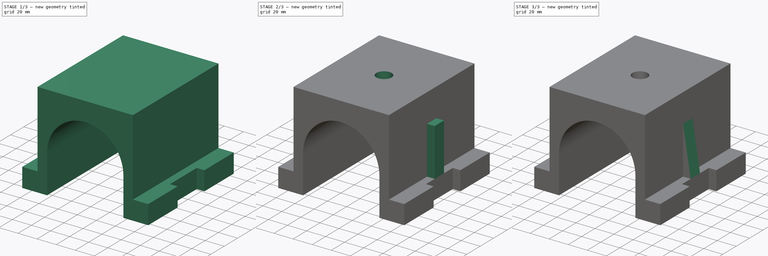
[diagram: build sequence overview — one tinted view per stage of 3, left to right]
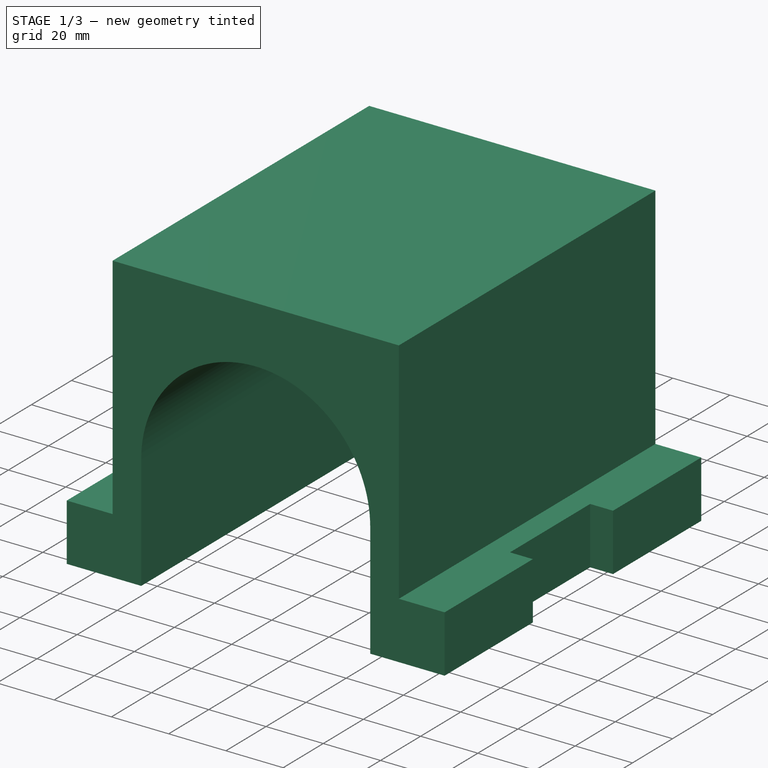
[diagram: stage 1 of 3 — iso view after this stage's code; geometry added in this stage tinted green]
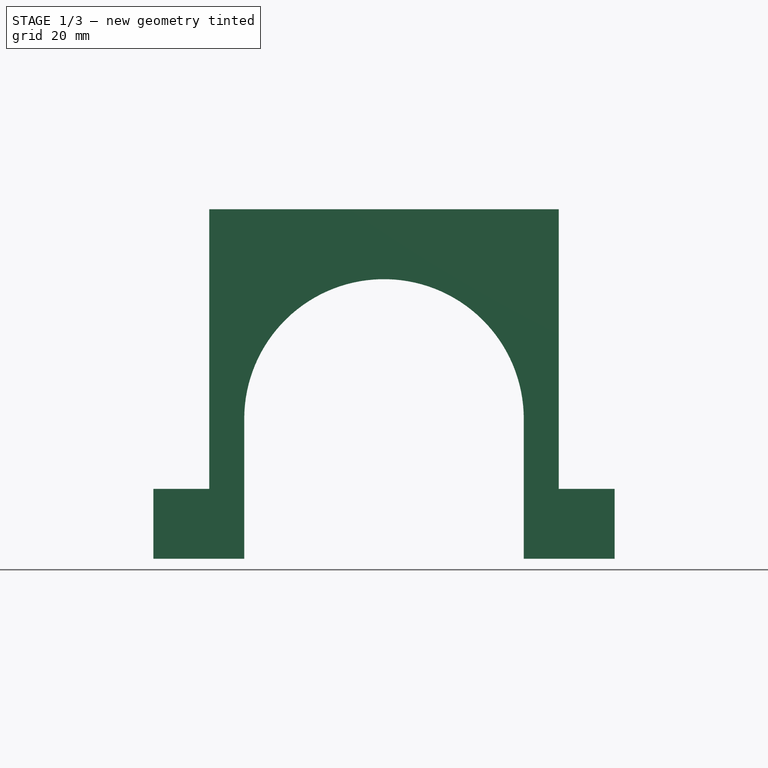
[diagram: stage 1 of 3 — front view after this stage's code; geometry added in this stage tinted green]
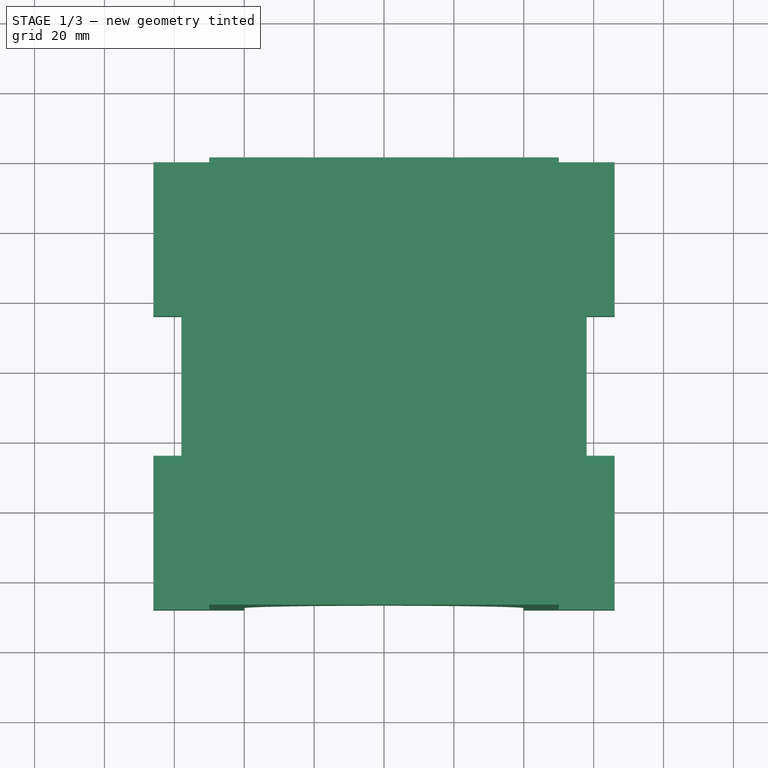
[diagram: stage 1 of 3 — top view after this stage's code; geometry added in this stage tinted green]
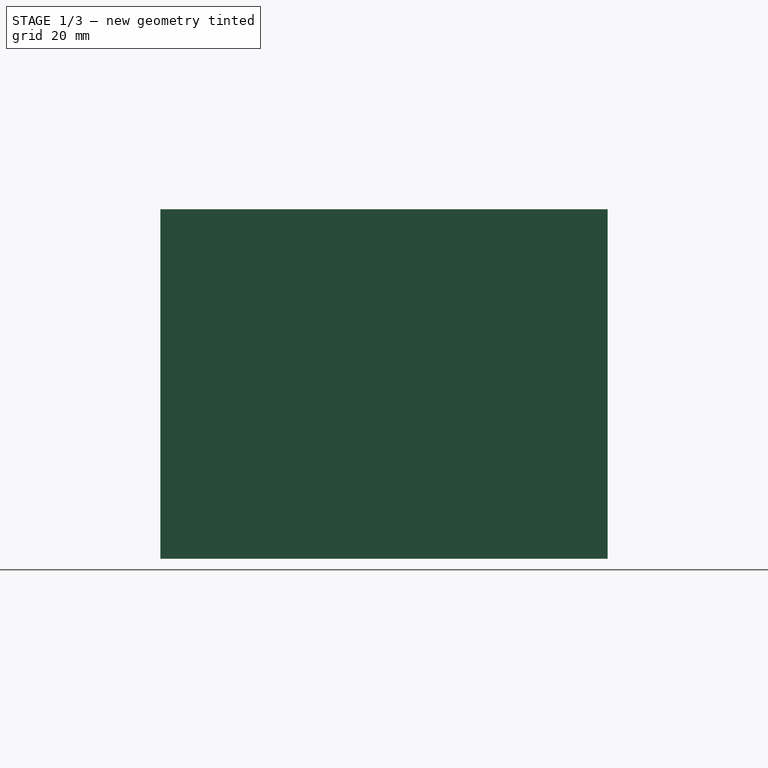
[diagram: stage 1 of 3 — right view after this stage's code; geometry added in this stage tinted green]
FCSTD DOCUMENT  (FreeCAD 1.0R39109 (Git))
Label: Задание1-2
License: All rights reserved
LicenseURL: https://en.wikipedia.org/wiki/All_rights_reserved
objects: Sketcher::SketchObject×5, PartDesign::Pocket×3, PartDesign::Pad×2, PartDesign::Mirrored×1, PartDesign::Body×1
note: 28 computed .brp shape members not serialized (recipe doc carries the construction recipe); baked Part::Feature solids carry a one-line shape summary decoded from their .brp

FEATURE [Sketcher::SketchObject] Sketch
  ArcFitTolerance = 1e-06
  AttachmentSupport = -> [XZ_Plane]
  FullyConstrained = true
  MakeInternals = false
  MapMode = 5
  Placement = pos=(0,0,0) rot=(1,0,0;1.5708rad)
  sketch-geometry (12):
    g0: LineSegment StartX=-50 StartY=100 StartZ=0 EndX=-50 EndY=20 EndZ=0
    g1: LineSegment StartX=50 StartY=20 StartZ=0 EndX=50 EndY=100 EndZ=0
    g2: LineSegment StartX=50 StartY=100 StartZ=0 EndX=-50 EndY=100 EndZ=0
    g3: LineSegment StartX=-50 StartY=20 StartZ=0 EndX=-66 EndY=20 EndZ=0
    g4: LineSegment StartX=-66 StartY=20 StartZ=0 EndX=-66 EndY=0 EndZ=0
    g5: LineSegment StartX=66 StartY=20 StartZ=0 EndX=66 EndY=0 EndZ=0
    g6: LineSegment StartX=-66 StartY=0 StartZ=0 EndX=-40 EndY=0 EndZ=0
    g7: LineSegment StartX=66 StartY=0 StartZ=0 EndX=40 EndY=0 EndZ=0
    g8: LineSegment StartX=40 StartY=0 StartZ=0 EndX=40 EndY=40 EndZ=0
    g9: LineSegment StartX=-40 StartY=0 StartZ=0 EndX=-40 EndY=40 EndZ=0
    g10: ArcOfCircle CenterX=0 CenterY=40 CenterZ=0 NormalX=0 NormalY=0 NormalZ=1 AngleXU=0 Radius=40 StartAngle=6.0017e-12 EndAngle=3.14159
    g11: LineSegment StartX=50 StartY=20 StartZ=0 EndX=66 EndY=20 EndZ=0
  constraints (37):
    c: Coincident(g1,g2)
    c: Coincident(g2,g0)
    c: Vertical(g0)
    c: Vertical(g1)
    c: Horizontal(g2)
    c: DistanceX(g2,g2) = 100
    c: DistanceY(g1,g1) = 80
    c: Distance(g1,g-1) = 100
    c: Distance(g3) = 16
    c: Coincident(g3,g0)
    c: Horizontal(g3)
    c: Distance(g4) = 20
    c: Vertical(g4)
    c: Coincident(g4,g3)
    c: Distance(g5) = 20
    c: Vertical(g5)
    c: Distance(g6) = 26
    c: Horizontal(g6)
    c: Coincident(g6,g4)
    c: PointOnObject(g6,g-1)
    c: Distance(g7) = 26
    c: Horizontal(g7)
    c: Coincident(g7,g5)
    c: PointOnObject(g7,g-1)
    c: Distance(g8) = 40
    c: Vertical(g8)
    c: Coincident(g8,g7)
    c: Distance(g9) = 40
    c: Vertical(g9)
    c: Coincident(g9,g6)
    c: PointOnObject(g10,g-2)
    c: Coincident(g10,g9)
    c: Coincident(g10,g8)
    c: Coincident(g11,g1)
    c: Coincident(g11,g5)
    c: Distance(g0,g-2) = 50
    c: Block(g10)
FEATURE [PartDesign::Pad] Pad
  Direction = (0,-1,2e-16)
  Length = 128
  Length2 = 10
  Placement = pos=(0,0,0) rot=(1,0,0;1.5708rad)
  Profile = -> Sketch
  ReferenceAxis = -> Sketch [N_Axis]
  Refine = true
  Suppressed = false
  Type = 0
FEATURE [Sketcher::SketchObject] Sketch001
  ArcFitTolerance = 1e-06
  AttachmentSupport = -> [Pad]
  FullyConstrained = true
  MakeInternals = false
  MapMode = 5
  Placement = pos=(0,4.4e-15,20) rot=(0,0,1;3.14159rad)
  sketch-geometry (8):
    g0: LineSegment StartX=-66 StartY=84 StartZ=0 EndX=-66 EndY=44 EndZ=0
    g1: LineSegment StartX=-66 StartY=44 StartZ=0 EndX=-58 EndY=44 EndZ=0
    g2: LineSegment StartX=-58 StartY=44 StartZ=0 EndX=-58 EndY=84 EndZ=0
    g3: LineSegment StartX=-58 StartY=84 StartZ=0 EndX=-66 EndY=84 EndZ=0
    g4: LineSegment StartX=58 StartY=84 StartZ=0 EndX=58 EndY=44 EndZ=0
    g5: LineSegment StartX=58 StartY=44 StartZ=0 EndX=66 EndY=44 EndZ=0
    g6: LineSegment StartX=66 StartY=44 StartZ=0 EndX=66 EndY=84 EndZ=0
    g7: LineSegment StartX=66 StartY=84 StartZ=0 EndX=58 EndY=84 EndZ=0
  constraints (24):
    c: Coincident(g0,g1)
    c: Coincident(g1,g2)
    c: Coincident(g2,g3)
    c: Coincident(g3,g0)
    c: Vertical(g0)
    c: Vertical(g2)
    c: Horizontal(g1)
    c: Horizontal(g3)
    c: Distance(g0,g2) = 8
    c: Distance(g1,g3) = 40
    c: Distance(g2,g-1) = 84
    c: Distance(g2,g-2) = 58
    c: Coincident(g4,g5)
    c: Coincident(g5,g6)
    c: Coincident(g6,g7)
    c: Coincident(g7,g4)
    c: Vertical(g4)
    c: Vertical(g6)
    c: Horizontal(g5)
    c: Horizontal(g7)
    c: Distance(g4,g6) = 8
    c: Distance(g5,g7) = 40
    c: Distance(g4,g-1) = 84
    c: Distance(g4,g-2) = 58
FEATURE [PartDesign::Pocket] Pocket
  BaseFeature = -> Pad
  Direction = (0,0,-1)
  Length = 5
  Length2 = 5
  Placement = pos=(0,0,0) rot=(1,0,0;1.5708rad)
  Profile = -> Sketch001
  ReferenceAxis = -> Sketch001 [N_Axis]
  Refine = true
  Suppressed = false
  Type = 1
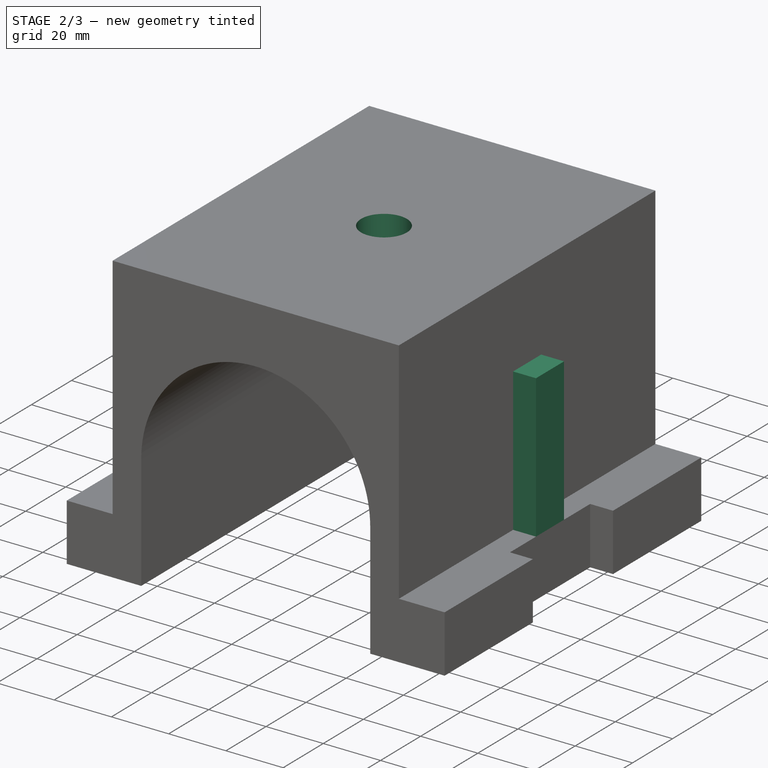
[diagram: stage 2 of 3 — iso view after this stage's code; geometry added in this stage tinted green]
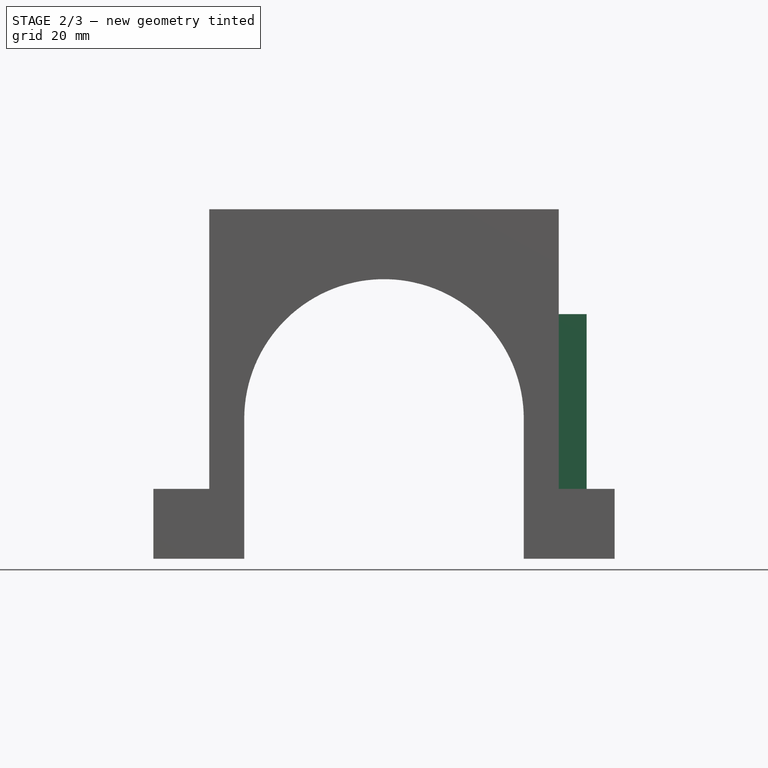
[diagram: stage 2 of 3 — front view after this stage's code; geometry added in this stage tinted green]
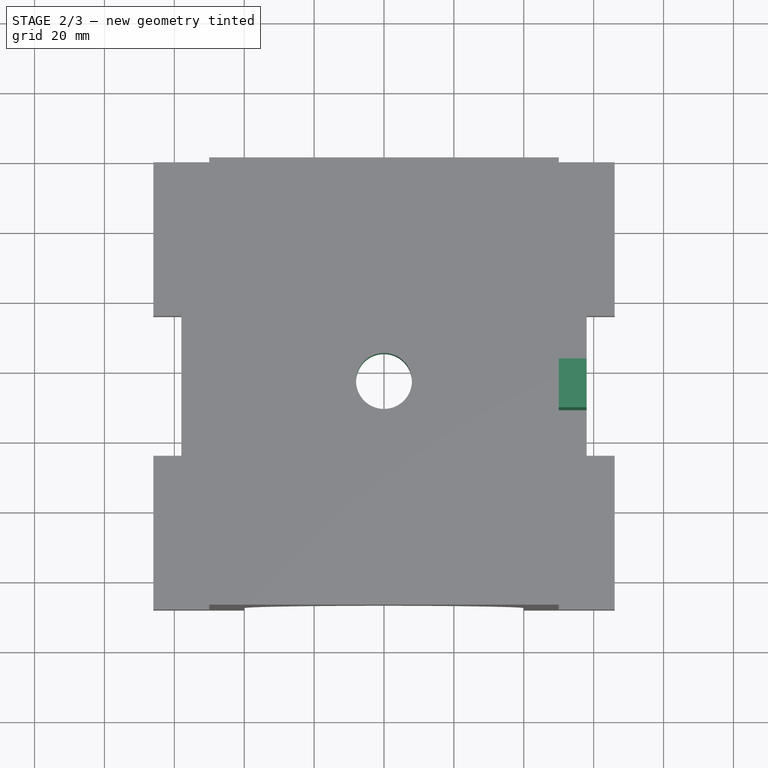
[diagram: stage 2 of 3 — top view after this stage's code; geometry added in this stage tinted green]
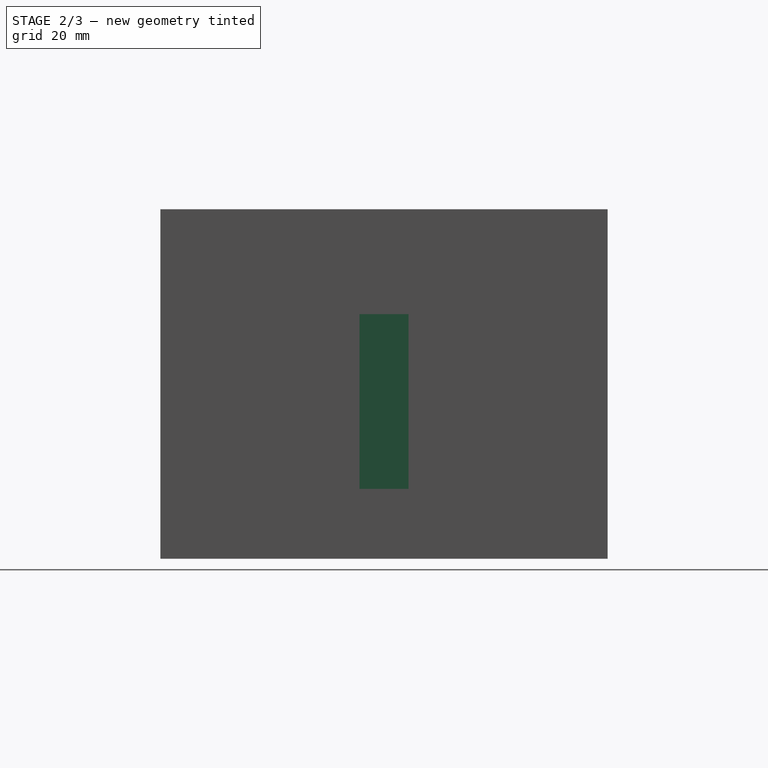
[diagram: stage 2 of 3 — right view after this stage's code; geometry added in this stage tinted green]
FEATURE [Sketcher::SketchObject] Sketch002
  ArcFitTolerance = 1e-06
  AttachmentSupport = -> [Pocket]
  FullyConstrained = true
  MakeInternals = false
  MapMode = 5
  Placement = pos=(50,0,0) rot=(0.707107,0,0.707107;3.14159rad)
  sketch-geometry (4):
    g0: LineSegment StartX=20 StartY=71 StartZ=0 EndX=20 EndY=57 EndZ=0
    g1: LineSegment StartX=20 StartY=57 StartZ=0 EndX=70 EndY=57 EndZ=0
    g2: LineSegment StartX=70 StartY=57 StartZ=0 EndX=70 EndY=71 EndZ=0
    g3: LineSegment StartX=70 StartY=71 StartZ=0 EndX=20 EndY=71 EndZ=0
  constraints (12):
    c: Coincident(g0,g1)
    c: Coincident(g1,g2)
    c: Coincident(g2,g3)
    c: Coincident(g3,g0)
    c: Vertical(g0)
    c: Vertical(g2)
    c: Horizontal(g1)
    c: Horizontal(g3)
    c: Distance(g0,g2) = 50
    c: Distance(g1,g3) = 14
    c: Distance(g1,g-1) = 57
    c: Distance(g1,g-2) = 70
FEATURE [PartDesign::Pad] Pad001
  BaseFeature = -> Pocket
  Direction = (1,0,-2e-16)
  Length = 8
  Length2 = 10
  Placement = pos=(0,0,0) rot=(1,0,0;1.5708rad)
  Profile = -> Sketch002
  ReferenceAxis = -> Sketch002 [N_Axis]
  Refine = true
  Suppressed = false
  Type = 0
FEATURE [Sketcher::SketchObject] Sketch003
  ArcFitTolerance = 1e-06
  AttachmentSupport = -> [Pad001]
  FullyConstrained = true
  MakeInternals = false
  MapMode = 5
  Placement = pos=(0,2.22e-14,100) rot=(0,0,1;3.14159rad)
  sketch-geometry (1):
    g0: Circle CenterX=0 CenterY=64 CenterZ=0 NormalX=0 NormalY=0 NormalZ=1 AngleXU=0 Radius=8
  constraints (3):
    c: Diameter(g0) = 16
    c: PointOnObject(g0,g-2)
    c: Distance(g0,g-1) = 64
FEATURE [PartDesign::Pocket] Pocket001
  BaseFeature = -> Pad001
  Direction = (0,0,-1)
  Length = 5
  Length2 = 5
  Placement = pos=(0,0,0) rot=(1,0,0;1.5708rad)
  Profile = -> Sketch003
  ReferenceAxis = -> Sketch003 [N_Axis]
  Refine = true
  Suppressed = false
  Type = 1
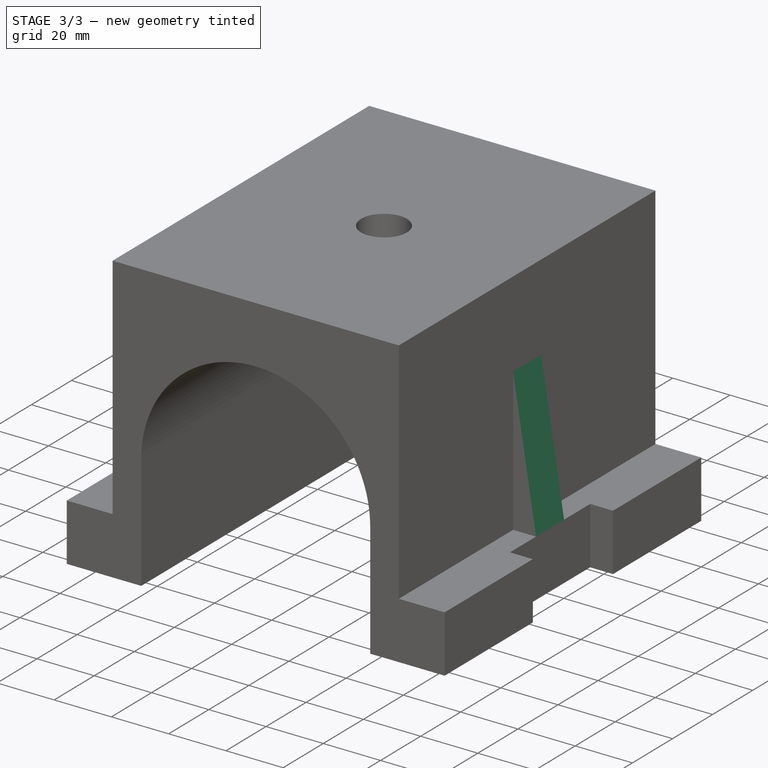
[diagram: stage 3 of 3 — iso view after this stage's code; geometry added in this stage tinted green]
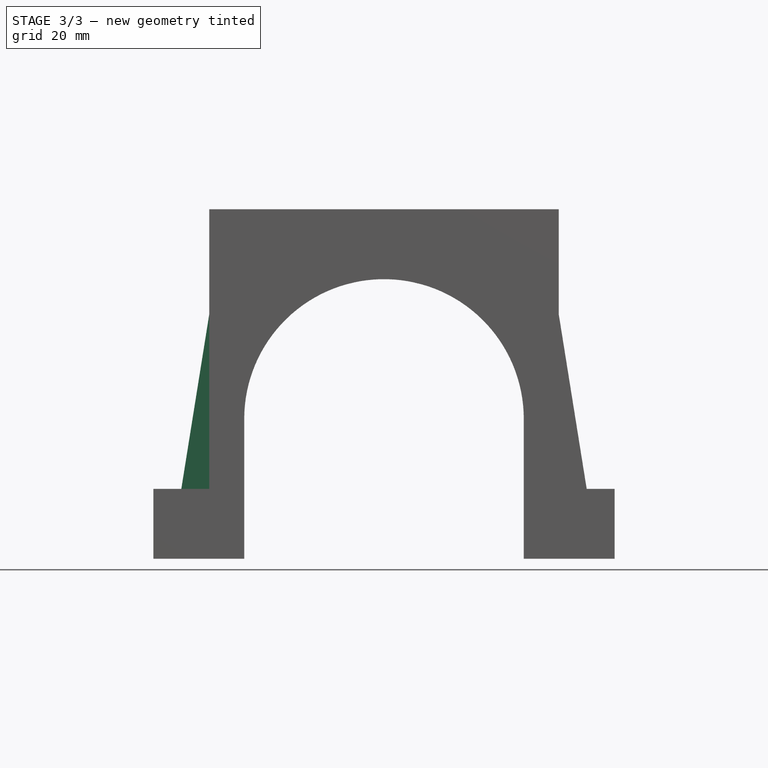
[diagram: stage 3 of 3 — front view after this stage's code; geometry added in this stage tinted green]
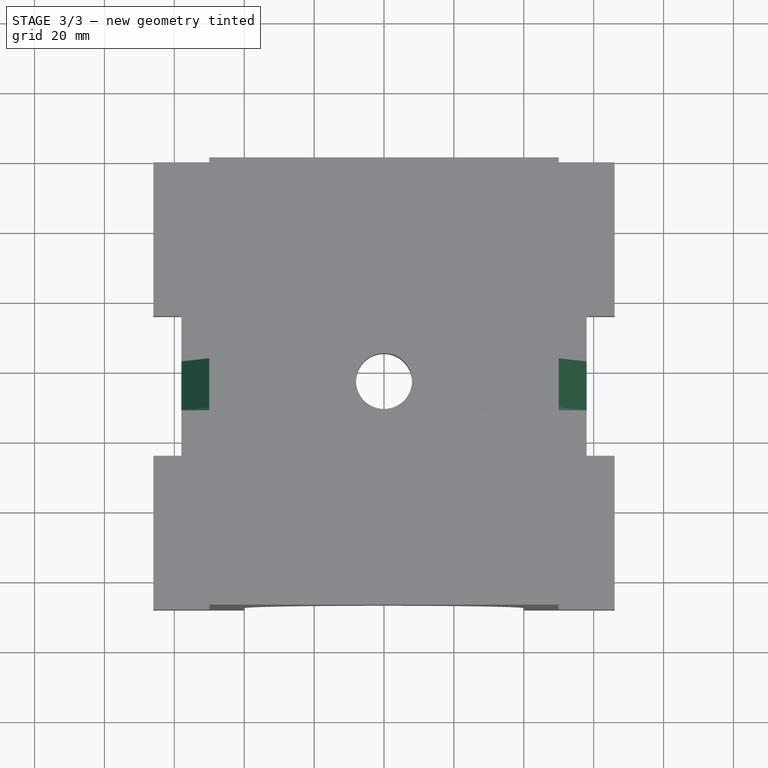
[diagram: stage 3 of 3 — top view after this stage's code; geometry added in this stage tinted green]
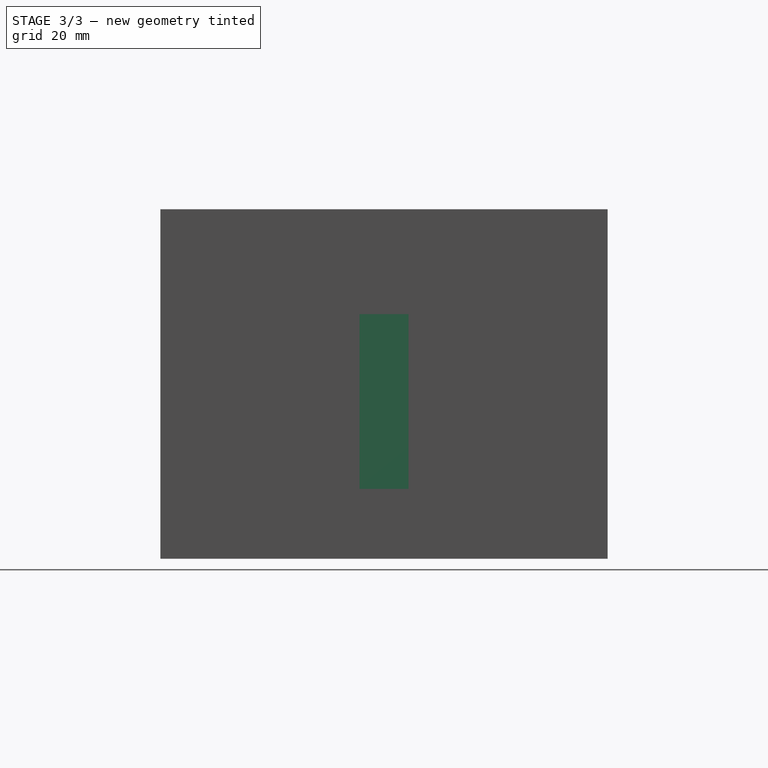
[diagram: stage 3 of 3 — right view after this stage's code; geometry added in this stage tinted green]
FEATURE [Sketcher::SketchObject] Sketch004
  ArcFitTolerance = 1e-06
  AttachmentSupport = -> [Pocket001]
  FullyConstrained = true
  MakeInternals = false
  MapMode = 5
  Placement = pos=(0,-71,0) rot=(1,0,0;1.5708rad)
  sketch-geometry (3):
    g0: LineSegment StartX=58 StartY=20 StartZ=0 EndX=58 EndY=70 EndZ=0
    g1: LineSegment StartX=58 StartY=70 StartZ=0 EndX=50 EndY=70 EndZ=0
    g2: LineSegment StartX=50 StartY=70 StartZ=0 EndX=58 EndY=20 EndZ=0
  constraints (9):
    c: Coincident(g0,g1)
    c: Vertical(g0)
    c: Horizontal(g1)
    c: Coincident(g2,g1)
    c: Coincident(g2,g0)
    c: DistanceX(g1,g1) = 8
    c: DistanceY(g0,g0) = 50
    c: Distance(g0,g-1) = 70
    c: Distance(g0,g-2) = 58
FEATURE [PartDesign::Pocket] Pocket002
  BaseFeature = -> Pocket001
  Direction = (0,1,-2e-16)
  Length = 5
  Length2 = 5
  Placement = pos=(0,0,0) rot=(1,0,0;1.5708rad)
  Profile = -> Sketch004
  ReferenceAxis = -> Sketch004 [N_Axis]
  Refine = true
  Suppressed = false
  Type = 1
FEATURE [PartDesign::Mirrored] Mirrored
  BaseFeature = -> Pocket002
  MirrorPlane = -> YZ_Plane
  Placement = pos=(0,0,0) rot=(1,0,0;1.5708rad)
  Refine = true
  Suppressed = false
  TransformMode = 1
FEATURE [PartDesign::Body] Body  label="Тело"
  AllowCompound = false
  Group = -> [Sketch,Pad,Sketch001,Pocket,Sketch002,Pad001,Sketch003,Pocket001,Sketch004,Pocket002,Mirrored]
  Origin = -> Origin
  Tip = -> Mirrored
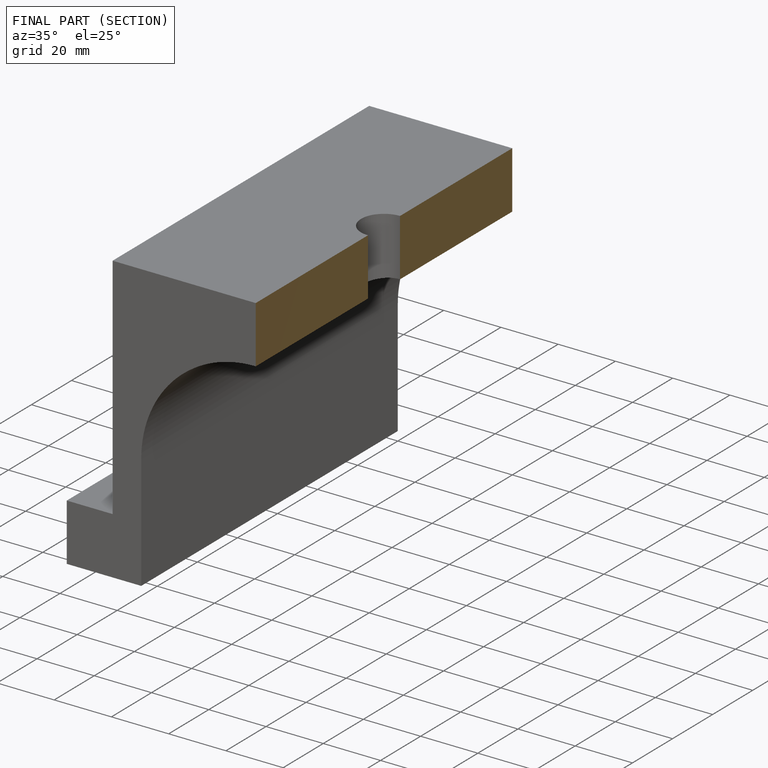
[diagram: finished part — half-section view (interior)]
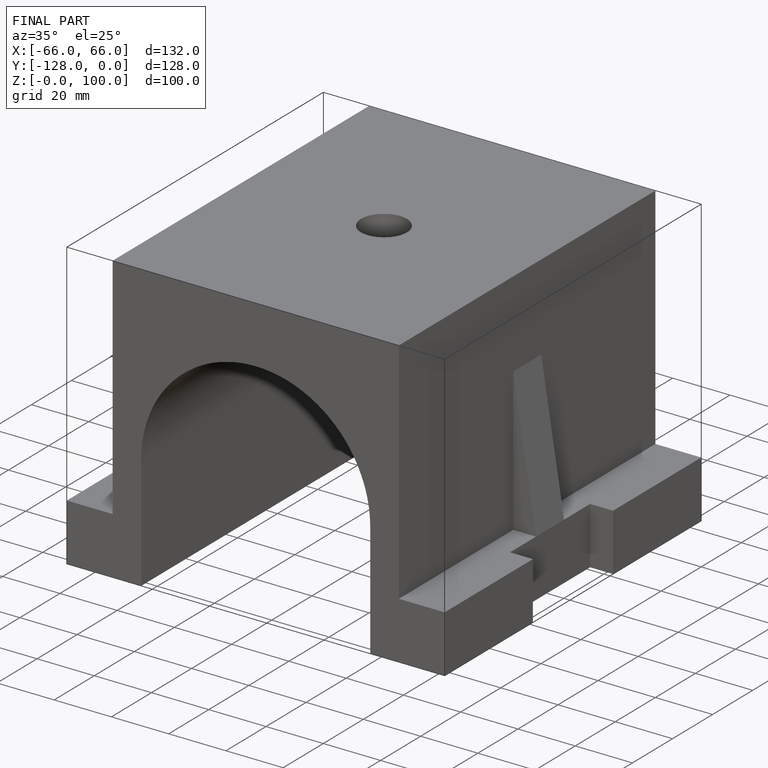
[diagram: finished part — iso view with bounding-box wireframe]
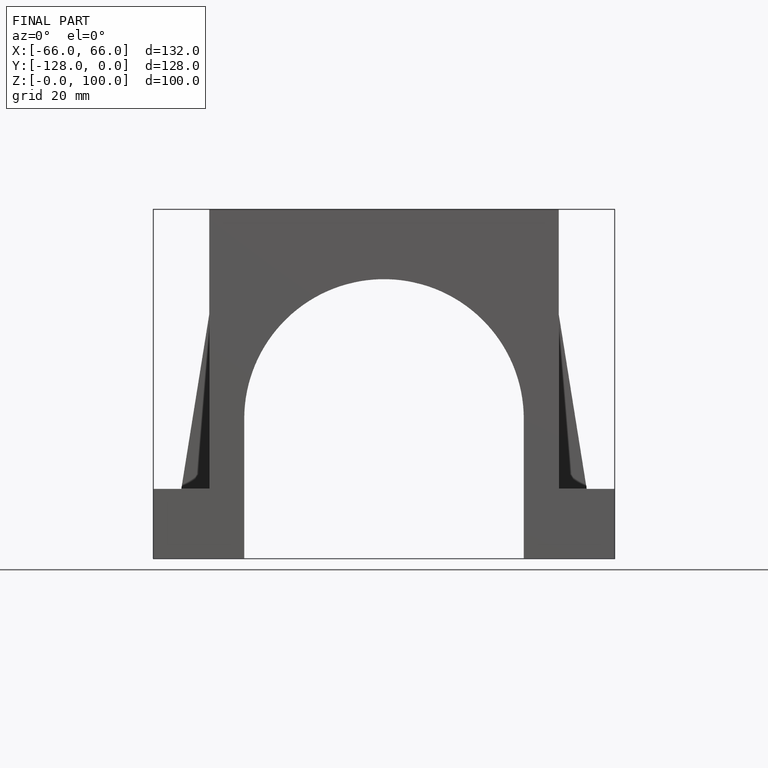
[diagram: finished part — front view with bounding-box wireframe]
